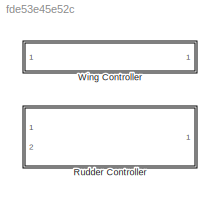
MODEL slx_fde53e45e52c
KIND library
CONFIG AbsTol = auto
CONFIG EnableMultiTasking = off
CONFIG FixedStep = auto
CONFIG MaxStep = auto
CONFIG MinStep = auto
CONFIG RelTol = 1e-3
CONFIG SampleTimeConstraint = Unconstrained
CONFIG Solver = VariableStepAuto
CONFIG SolverName = VariableStepAuto
CONFIG StartTime = 0.0
CONFIG StopTime = 10.0
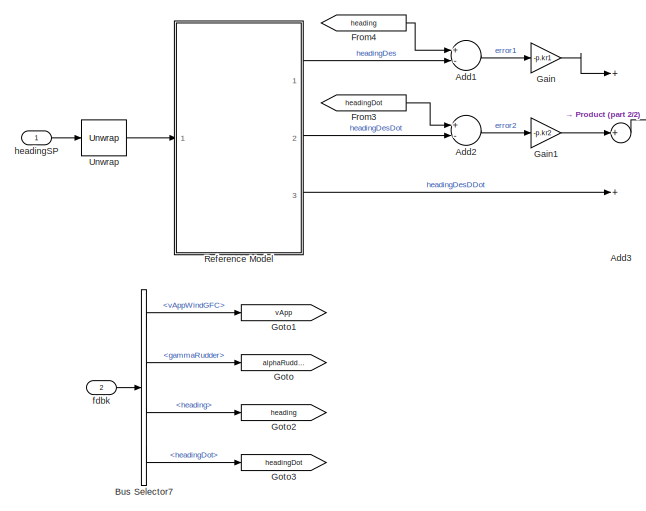
[diagram: Rudder Controller - part 1/2, left side, full height]
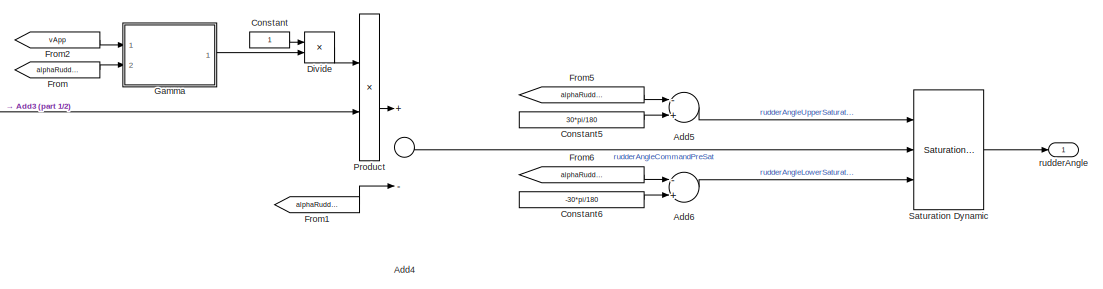
[diagram: Rudder Controller - part 2/2, top right region]
BLOCK [SubSystem] Rudder Controller
  Ports = [2, 1]
  RequestExecContextInheritance = off
BLOCK [Sum] Rudder Controller/Add1
  InputSameDT = off
  Inputs = +-
  OutDataTypeStr = Inherit: Inherit via internal rule
  Ports = [2, 1]
  SaturateOnIntegerOverflow = off
BLOCK [Sum] Rudder Controller/Add2
  InputSameDT = off
  Inputs = +-
  OutDataTypeStr = Inherit: Inherit via internal rule
  Ports = [2, 1]
  SaturateOnIntegerOverflow = off
BLOCK [Sum] Rudder Controller/Add3
  InputSameDT = off
  Inputs = +++
  OutDataTypeStr = Inherit: Inherit via internal rule
  Ports = [3, 1]
  SaturateOnIntegerOverflow = off
BLOCK [Sum] Rudder Controller/Add4
  InputSameDT = off
  Inputs = +-
  OutDataTypeStr = Inherit: Inherit via internal rule
  Ports = [2, 1]
  SaturateOnIntegerOverflow = off
BLOCK [Sum] Rudder Controller/Add5
  InputSameDT = off
  Inputs = -+
  OutDataTypeStr = Inherit: Inherit via internal rule
  Ports = [2, 1]
  SaturateOnIntegerOverflow = off
BLOCK [Sum] Rudder Controller/Add6
  InputSameDT = off
  Inputs = -+
  OutDataTypeStr = Inherit: Inherit via internal rule
  Ports = [2, 1]
  SaturateOnIntegerOverflow = off
BLOCK [BusSelector] Rudder Controller/Bus Selector7
  OutputAsBus = off
  OutputSignals = vAppWindGFC,gammaRudder,heading,headingDot
  Ports = [1, 4]
BLOCK [Constant] Rudder Controller/Constant
BLOCK [Constant] Rudder Controller/Constant5
  Value = 30*pi/180
BLOCK [Constant] Rudder Controller/Constant6
  Value = -30*pi/180
BLOCK [Product] Rudder Controller/Divide
  InputSameDT = off
  Inputs = */
  OutDataTypeStr = Inherit: Inherit via internal rule
  Ports = [2, 1]
  RndMeth = Floor
  SaturateOnIntegerOverflow = off
BLOCK [From] Rudder Controller/From
  GotoTag = alphaRudder
BLOCK [From] Rudder Controller/From1
  GotoTag = alphaRudder
BLOCK [From] Rudder Controller/From2
  GotoTag = vApp
BLOCK [From] Rudder Controller/From3
  GotoTag = headingDot
BLOCK [From] Rudder Controller/From4
  GotoTag = heading
BLOCK [From] Rudder Controller/From5
  GotoTag = alphaRudder
BLOCK [From] Rudder Controller/From6
  GotoTag = alphaRudder
BLOCK [Gain] Rudder Controller/Gain
  Gain = -p.kr1
  OutDataTypeStr = Inherit: Inherit via internal rule
  ParamDataTypeStr = Inherit: Inherit via internal rule
  SaturateOnIntegerOverflow = off
BLOCK [Gain] Rudder Controller/Gain1
  Gain = -p.kr2
  OutDataTypeStr = Inherit: Inherit via internal rule
  ParamDataTypeStr = Inherit: Inherit via internal rule
  SaturateOnIntegerOverflow = off
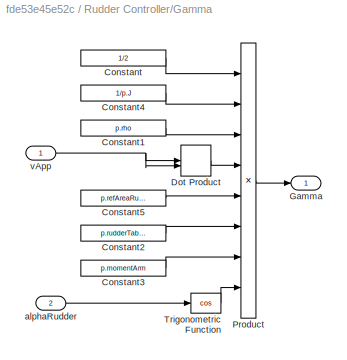
BLOCK [SubSystem] Rudder Controller/Gamma
  Ports = [2, 1]
  RequestExecContextInheritance = off
BLOCK [Constant] Rudder Controller/Gamma/Constant
  Value = 1/2
BLOCK [Constant] Rudder Controller/Gamma/Constant1
  Value = p.rho
BLOCK [Constant] Rudder Controller/Gamma/Constant2
  Value = p.rudderTable.kl1
BLOCK [Constant] Rudder Controller/Gamma/Constant3
  Value = p.momentArm
BLOCK [Constant] Rudder Controller/Gamma/Constant4
  Value = 1/p.J
BLOCK [Constant] Rudder Controller/Gamma/Constant5
  Value = p.refAreaRudder
BLOCK [DotProduct] Rudder Controller/Gamma/Dot Product
  OutDataTypeStr = Inherit: Inherit via internal rule
BLOCK [Outport] Rudder Controller/Gamma/Gamma
  IconDisplay = Port number
BLOCK [Product] Rudder Controller/Gamma/Product
  InputSameDT = off
  Inputs = 8
  OutDataTypeStr = Inherit: Inherit via internal rule
  Ports = [8, 1]
  RndMeth = Floor
  SaturateOnIntegerOverflow = off
BLOCK [Trigonometry] Rudder Controller/Gamma/Trigonometric Function
  Operator = cos
  Ports = [1, 1]
BLOCK [Inport] Rudder Controller/Gamma/alphaRudder
  IconDisplay = Port number
  Port = 2
BLOCK [Inport] Rudder Controller/Gamma/vApp
  IconDisplay = Port number
BLOCK [Goto] Rudder Controller/Goto
  GotoTag = alphaRudder
BLOCK [Goto] Rudder Controller/Goto1
  GotoTag = vApp
BLOCK [Goto] Rudder Controller/Goto2
  GotoTag = heading
BLOCK [Goto] Rudder Controller/Goto3
  GotoTag = headingDot
BLOCK [Product] Rudder Controller/Product
  InputSameDT = off
  OutDataTypeStr = Inherit: Inherit via internal rule
  Ports = [2, 1]
  RndMeth = Floor
  SaturateOnIntegerOverflow = off
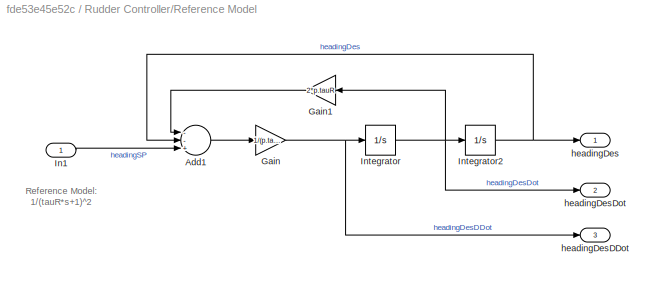
BLOCK [SubSystem] Rudder Controller/Reference Model
  Ports = [1, 3]
  RequestExecContextInheritance = off
BLOCK [Sum] Rudder Controller/Reference Model/Add1
  InputSameDT = off
  Inputs = --+
  OutDataTypeStr = Inherit: Inherit via internal rule
  Ports = [3, 1]
  SaturateOnIntegerOverflow = off
BLOCK [Gain] Rudder Controller/Reference Model/Gain
  Gain = 1/(p.tauR^2)
  OutDataTypeStr = Inherit: Inherit via internal rule
  ParamDataTypeStr = Inherit: Inherit via internal rule
  SaturateOnIntegerOverflow = off
BLOCK [Gain] Rudder Controller/Reference Model/Gain1
  Gain = 2*p.tauR
  OutDataTypeStr = Inherit: Inherit via internal rule
  ParamDataTypeStr = Inherit: Inherit via internal rule
  SaturateOnIntegerOverflow = off
BLOCK [Inport] Rudder Controller/Reference Model/In1
  IconDisplay = Port number
BLOCK [Integrator] Rudder Controller/Reference Model/Integrator
  Ports = [1, 1]
BLOCK [Integrator] Rudder Controller/Reference Model/Integrator2
  InitialCondition = p.initTwist
  Ports = [1, 1]
BLOCK [Outport] Rudder Controller/Reference Model/headingDes
  IconDisplay = Port number
BLOCK [Outport] Rudder Controller/Reference Model/headingDesDDot
  IconDisplay = Port number
  Port = 3
BLOCK [Outport] Rudder Controller/Reference Model/headingDesDot
  IconDisplay = Port number
  Port = 2
BLOCK [Reference] Rudder Controller/Saturation Dynamic  REF=simulink/Discontinuities/Saturation
Dynamic
  Ports = [3, 1]
  SourceBlock = simulink/Discontinuities/Saturation\nDynamic
  SourceProductBaseCode = SL
  SourceProductName = Simulink
  SourceType = Saturation Dynamic
BLOCK [Reference] Rudder Controller/Unwrap  REF=dspsigops/Unwrap
  Ports = [1, 1]
  SourceBlock = dspsigops/Unwrap
  SourceProductBaseCode = DS
  SourceProductName = DSP System Toolbox
  SourceType = Unwrap
  UserDataPersistent = on
BLOCK [Inport] Rudder Controller/fdbk
  IconDisplay = Port number
  OutDataTypeStr = Bus: busPlantFeedback
  Port = 2
BLOCK [Inport] Rudder Controller/headingSP
  IconDisplay = Port number
  Unit = rad
BLOCK [Outport] Rudder Controller/rudderAngle
  IconDisplay = Port number
  Unit = rad
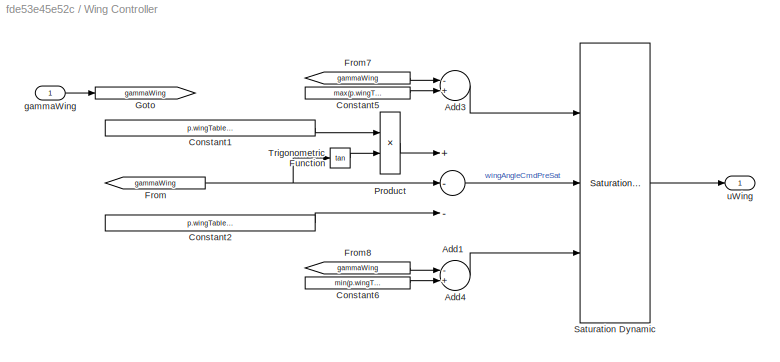
BLOCK [SubSystem] Wing Controller
  Ports = [1, 1]
  RequestExecContextInheritance = off
BLOCK [Sum] Wing Controller/Add1
  InputSameDT = off
  Inputs = +--
  OutDataTypeStr = Inherit: Inherit via internal rule
  Ports = [3, 1]
  SaturateOnIntegerOverflow = off
BLOCK [Sum] Wing Controller/Add3
  InputSameDT = off
  Inputs = -+
  OutDataTypeStr = Inherit: Inherit via internal rule
  Ports = [2, 1]
  SaturateOnIntegerOverflow = off
BLOCK [Sum] Wing Controller/Add4
  InputSameDT = off
  Inputs = -+
  OutDataTypeStr = Inherit: Inherit via internal rule
  Ports = [2, 1]
  SaturateOnIntegerOverflow = off
BLOCK [Constant] Wing Controller/Constant1
  Value = p.wingTable.kl1/(2*p.wingTable.kd2)
BLOCK [Constant] Wing Controller/Constant2
  Value = p.wingTable.kd1/(2*p.wingTable.kd2)
BLOCK [Constant] Wing Controller/Constant5
  Value = max(p.wingTable.alpha)
BLOCK [Constant] Wing Controller/Constant6
  Value = min(p.wingTable.alpha)
BLOCK [From] Wing Controller/From
  GotoTag = gammaWing
BLOCK [From] Wing Controller/From7
  GotoTag = gammaWing
BLOCK [From] Wing Controller/From8
  GotoTag = gammaWing
BLOCK [Goto] Wing Controller/Goto
  GotoTag = gammaWing
BLOCK [Product] Wing Controller/Product
  InputSameDT = off
  OutDataTypeStr = Inherit: Inherit via internal rule
  Ports = [2, 1]
  RndMeth = Floor
  SaturateOnIntegerOverflow = off
BLOCK [Reference] Wing Controller/Saturation Dynamic  REF=simulink/Discontinuities/Saturation
Dynamic
  Ports = [3, 1]
  SourceBlock = simulink/Discontinuities/Saturation\nDynamic
  SourceProductBaseCode = SL
  SourceProductName = Simulink
  SourceType = Saturation Dynamic
BLOCK [Trigonometry] Wing Controller/Trigonometric Function
  Operator = tan
  Ports = [1, 1]
BLOCK [Inport] Wing Controller/gammaWing
  IconDisplay = Port number
  Unit = rad
BLOCK [Outport] Wing Controller/uWing
  IconDisplay = Port number
  Unit = rad
ANNOTATION Rudder Controller/Reference Model: Reference Model: 1/(tauR*s+1)^2
LINE Rudder Controller/Add1:1 -> Rudder Controller/Gain:1
LINE Rudder Controller/Add2:1 -> Rudder Controller/Gain1:1
LINE Rudder Controller/Add3:1 -> Rudder Controller/Product:2
LINE Rudder Controller/Add4:1 -> Rudder Controller/Saturation Dynamic:2
LINE Rudder Controller/Add5:1 -> Rudder Controller/Saturation Dynamic:1
LINE Rudder Controller/Add6:1 -> Rudder Controller/Saturation Dynamic:3
LINE Rudder Controller/Bus Selector7:1 -> Rudder Controller/Goto1:1
LINE Rudder Controller/Bus Selector7:2 -> Rudder Controller/Goto:1
LINE Rudder Controller/Bus Selector7:3 -> Rudder Controller/Goto2:1
LINE Rudder Controller/Bus Selector7:4 -> Rudder Controller/Goto3:1
LINE Rudder Controller/Constant5:1 -> Rudder Controller/Add5:2
LINE Rudder Controller/Constant6:1 -> Rudder Controller/Add6:2
LINE Rudder Controller/Constant:1 -> Rudder Controller/Divide:1
LINE Rudder Controller/Divide:1 -> Rudder Controller/Product:1
LINE Rudder Controller/From1:1 -> Rudder Controller/Add4:2
LINE Rudder Controller/From2:1 -> Rudder Controller/Gamma:1
LINE Rudder Controller/From3:1 -> Rudder Controller/Add2:1
LINE Rudder Controller/From4:1 -> Rudder Controller/Add1:1
LINE Rudder Controller/From5:1 -> Rudder Controller/Add5:1
LINE Rudder Controller/From6:1 -> Rudder Controller/Add6:1
LINE Rudder Controller/From:1 -> Rudder Controller/Gamma:2
LINE Rudder Controller/Gain1:1 -> Rudder Controller/Add3:2
LINE Rudder Controller/Gain:1 -> Rudder Controller/Add3:1
LINE Rudder Controller/Gamma/Constant1:1 -> Rudder Controller/Gamma/Product:3
LINE Rudder Controller/Gamma/Constant2:1 -> Rudder Controller/Gamma/Product:6
LINE Rudder Controller/Gamma/Constant3:1 -> Rudder Controller/Gamma/Product:7
LINE Rudder Controller/Gamma/Constant4:1 -> Rudder Controller/Gamma/Product:2
LINE Rudder Controller/Gamma/Constant5:1 -> Rudder Controller/Gamma/Product:5
LINE Rudder Controller/Gamma/Constant:1 -> Rudder Controller/Gamma/Product:1
LINE Rudder Controller/Gamma/Dot Product:1 -> Rudder Controller/Gamma/Product:4
LINE Rudder Controller/Gamma/Product:1 -> Rudder Controller/Gamma/Gamma:1
LINE Rudder Controller/Gamma/Trigonometric Function:1 -> Rudder Controller/Gamma/Product:8
LINE Rudder Controller/Gamma/alphaRudder:1 -> Rudder Controller/Gamma/Trigonometric Function:1
NET Rudder Controller/Gamma/vApp:1 -> Rudder Controller/Gamma/Dot Product:1, Rudder Controller/Gamma/Dot Product:2
LINE Rudder Controller/Gamma:1 -> Rudder Controller/Divide:2
LINE Rudder Controller/Product:1 -> Rudder Controller/Add4:1
LINE Rudder Controller/Reference Model/Add1:1 -> Rudder Controller/Reference Model/Gain:1
LINE Rudder Controller/Reference Model/Gain1:1 -> Rudder Controller/Reference Model/Add1:1
NET Rudder Controller/Reference Model/Gain:1 -> Rudder Controller/Reference Model/Integrator:1, Rudder Controller/Reference Model/headingDesDDot:1
LINE Rudder Controller/Reference Model/In1:1 -> Rudder Controller/Reference Model/Add1:3
NET Rudder Controller/Reference Model/Integrator2:1 -> Rudder Controller/Reference Model/Add1:2, Rudder Controller/Reference Model/headingDes:1
NET Rudder Controller/Reference Model/Integrator:1 -> Rudder Controller/Reference Model/Gain1:1, Rudder Controller/Reference Model/Integrator2:1, Rudder Controller/Reference Model/headingDesDot:1
LINE Rudder Controller/Reference Model:1 -> Rudder Controller/Add1:2
LINE Rudder Controller/Reference Model:2 -> Rudder Controller/Add2:2
LINE Rudder Controller/Reference Model:3 -> Rudder Controller/Add3:3
LINE Rudder Controller/Saturation Dynamic:1 -> Rudder Controller/rudderAngle:1
LINE Rudder Controller/Unwrap:1 -> Rudder Controller/Reference Model:1
LINE Rudder Controller/fdbk:1 -> Rudder Controller/Bus Selector7:1
LINE Rudder Controller/headingSP:1 -> Rudder Controller/Unwrap:1
LINE Wing Controller/Add1:1 -> Wing Controller/Saturation Dynamic:2
LINE Wing Controller/Add3:1 -> Wing Controller/Saturation Dynamic:1
LINE Wing Controller/Add4:1 -> Wing Controller/Saturation Dynamic:3
LINE Wing Controller/Constant1:1 -> Wing Controller/Product:1
LINE Wing Controller/Constant2:1 -> Wing Controller/Add1:3
LINE Wing Controller/Constant5:1 -> Wing Controller/Add3:2
LINE Wing Controller/Constant6:1 -> Wing Controller/Add4:2
LINE Wing Controller/From7:1 -> Wing Controller/Add3:1
LINE Wing Controller/From8:1 -> Wing Controller/Add4:1
NET Wing Controller/From:1 -> Wing Controller/Add1:2, Wing Controller/Trigonometric Function:1
LINE Wing Controller/Product:1 -> Wing Controller/Add1:1
LINE Wing Controller/Saturation Dynamic:1 -> Wing Controller/uWing:1
LINE Wing Controller/Trigonometric Function:1 -> Wing Controller/Product:2
LINE Wing Controller/gammaWing:1 -> Wing Controller/Goto:1
note: NET lines group one-source signal fan-out (src -> all destinations, sorted); 1:1 wires keep LINE
